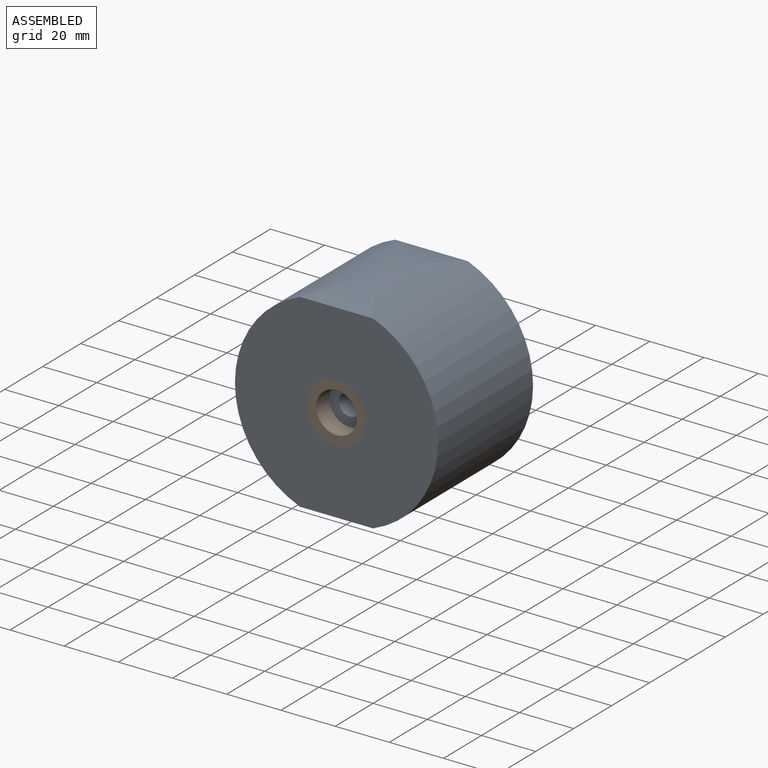
[diagram: assembled view]
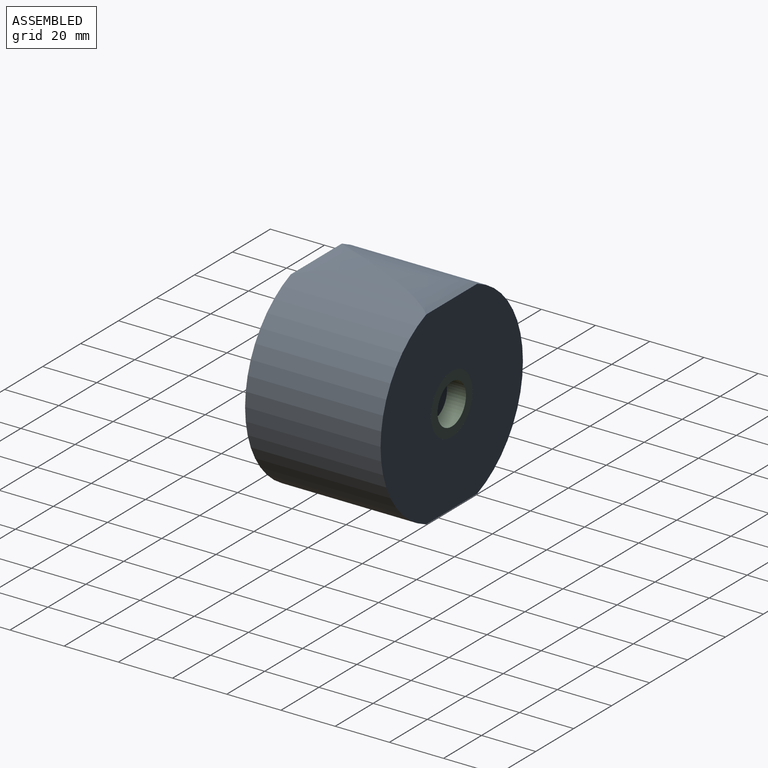
[diagram: assembled view, second angle]
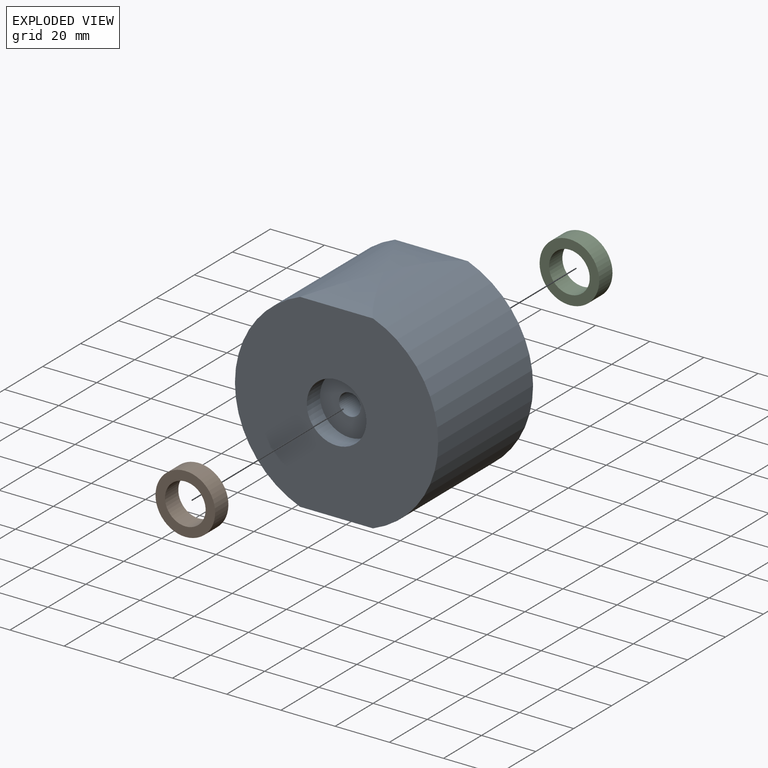
[diagram: exploded view]
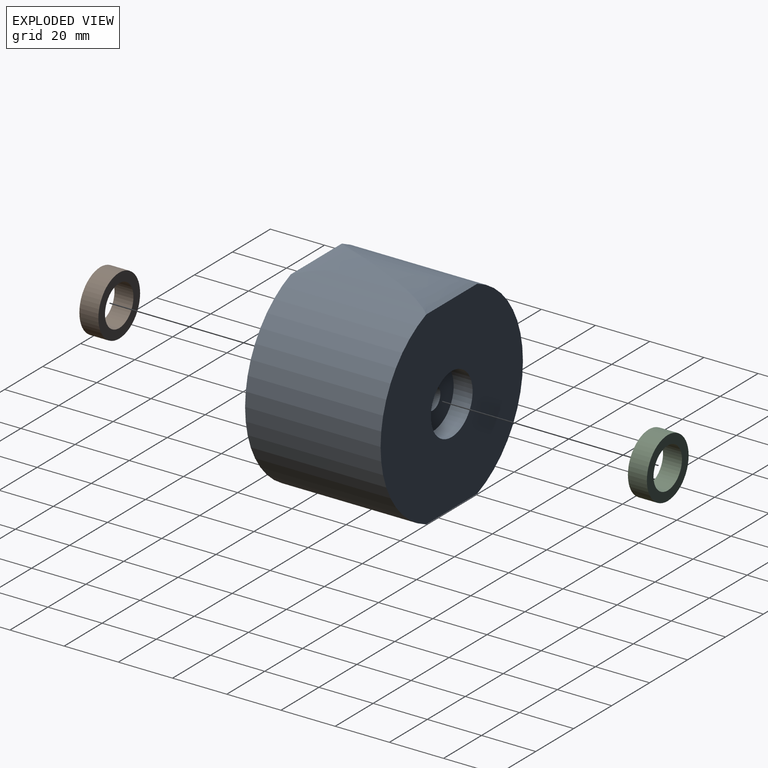
[diagram: exploded view, second angle]
ASSEMBLY  parts=3 mates=2
PART A: 13 faces, bbox 75x50x75 mm
  f0: cylinder r=37.5mm len=75mm, axis (0,1,0), area 5268.8mm2, adj f2,f3,f9,f10,f11,f12
  f1: cylinder r=37.5mm len=75mm, axis (0,1,0), area 5268.8mm2, adj f2,f3,f9,f10,f11,f12
  f2: plane 75x70mm, normal (0,1,0), area 3947.4mm2, adj f0,f1,f8,f10,f11
  f3: plane 75x70mm, normal (0,-1,0), area 3947.4mm2, adj f0,f1,f6,f9,f12
  f4: cylinder r=4mm len=36mm, axis (0,-1,0), area 904.8mm2, adj f5,f7
  f5: plane 22x22mm, normal (0,-1,0), area 329.9mm2, adj f4,f6
  f6: cylinder r=11mm len=22mm, axis (0,-1,0), area 483.8mm2, adj f3,f5
  f7: plane 22x22mm, normal (0,1,0), area 329.9mm2, adj f4,f8
  f8: cylinder r=11mm len=22mm, axis (0,1,0), area 483.8mm2, adj f2,f7
  f9: extruded ~26.93x25mm, area 312mm2, adj f0,f1,f3
  f10: extruded ~26.93x25mm, area 312mm2, adj f0,f1,f2
  f11: extruded ~26.93x25mm, area 312mm2, adj f0,f1,f2
  f12: extruded ~26.93x25mm, area 312mm2, adj f0,f1,f3
PART B: 4 faces, bbox 22x7x22 mm
  f0: cylinder r=7.5mm len=15mm, axis (0,1,0), area 329.9mm2, adj f2,f3
  f1: cylinder r=11mm len=22mm, axis (0,1,0), area 483.8mm2, adj f2,f3
  f2: plane 22x22mm, normal (0,-1,0), area 203.4mm2, adj f0,f1
  f3: plane 22x22mm, normal (0,1,0), area 203.4mm2, adj f0,f1
PART C: same geometry as B
PLACE A at identity fixed
PLACE B t=(0,-18,0)mm
PLACE C t=(0,25,0)mm
MATE fastened B.f1 <-> A.f4  axis (0,1,0) through (0,-18,0)mm
MATE fastened C.f1 <-> A.f8  axis (0,-1,0) through (0,18,0)mm
